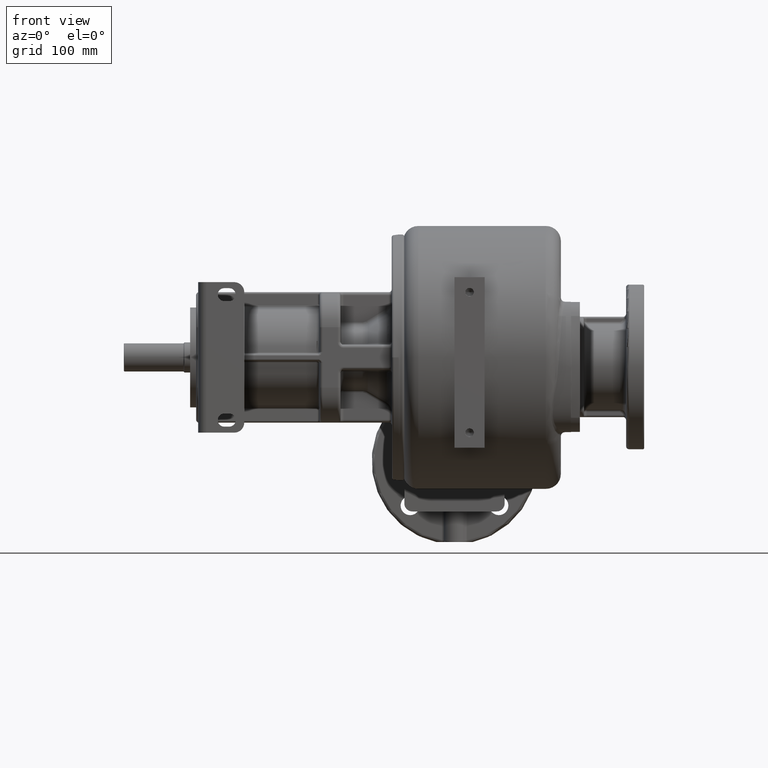
[diagram: clean part render]
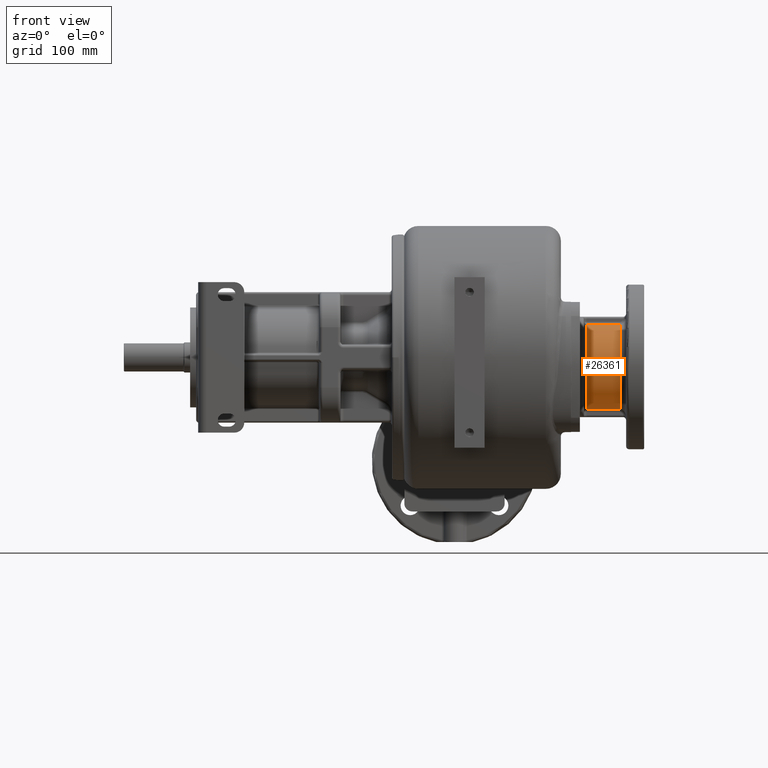
[diagram: same view with one face highlighted and labeled with its STEP entity id]
A machine part, front view. The second image highlights one B-rep face of the part: STEP entity #26361.
In plain terms, the highlighted cylindrical surface (partial cylindrical patch) has radius 42.5 mm, axis along (1, 0, 0).
Its self-contained STEP definition (entity closure, byte-faithful):
#8294=DIRECTION('',(-1.E0,6.999405768863E-9,5.261495707865E-8));
#8295=VECTOR('',#8294,3.299999999964E1);
#8296=CARTESIAN_POINT('',(1.499999999999E2,2.663956041646E2,-5.162886060892E1));
#8297=LINE('',#8296,#8295);
#8298=CARTESIAN_POINT('',(1.17E2,2.72E2,-9.5E0));
#8299=DIRECTION('',(1.E0,0.E0,0.E0));
#8300=DIRECTION('',(0.E0,-1.318681318681E-1,9.912672675911E-1));
#8301=AXIS2_PLACEMENT_3D('',#8298,#8299,#8300);
#8303=DIRECTION('',(1.E0,-6.999934584911E-9,5.261893461076E-8));
#8304=VECTOR('',#8303,3.299999999964E1);
#8305=CARTESIAN_POINT('',(1.170000000002E2,2.663956043956E2,3.262885887262E1));
#8306=LINE('',#8305,#8304);
#8307=CARTESIAN_POINT('',(1.5E2,2.72E2,-9.5E0));
#8308=DIRECTION('',(-1.E0,0.E0,0.E0));
#8309=DIRECTION('',(0.E0,-1.318681318681E-1,-9.912672675911E-1));
#8310=AXIS2_PLACEMENT_3D('',#8307,#8308,#8309);
#17087=CARTESIAN_POINT('',(1.17E2,2.663956043956E2,-5.162885887262E1));
#17089=VERTEX_POINT('',#17087);
#17091=CARTESIAN_POINT('',(1.499999999999E2,2.663956041646E2,
-5.162886060892E1));
#17092=VERTEX_POINT('',#17091);
#17099=CARTESIAN_POINT('',(1.17E2,2.663956043956E2,3.262885887262E1));
#17101=VERTEX_POINT('',#17099);
#17102=CARTESIAN_POINT('',(1.499999999999E2,2.663956041646E2,3.262886060905E1));
#17103=VERTEX_POINT('',#17102);
#26347=CARTESIAN_POINT('',(9.7E1,2.72E2,-9.5E0));
#26348=DIRECTION('',(1.E0,0.E0,0.E0));
#26349=DIRECTION('',(0.E0,0.E0,-1.E0));
#26350=AXIS2_PLACEMENT_3D('',#26347,#26348,#26349);
#26351=CYLINDRICAL_SURFACE('',#26350,4.25E1);
#26353=ORIENTED_EDGE('',*,*,#26352,.T.);
#26355=ORIENTED_EDGE('',*,*,#26354,.F.);
#26356=ORIENTED_EDGE('',*,*,#26338,.T.);
#26358=ORIENTED_EDGE('',*,*,#26357,.F.);
#26359=EDGE_LOOP('',(#26353,#26355,#26356,#26358));
#26360=FACE_OUTER_BOUND('',#26359,.F.);
#26361=ADVANCED_FACE('',(#26360),#26351,.T.);
#8302=CIRCLE('',#8301,4.25E1);
#8311=CIRCLE('',#8310,4.25E1);
#26338=EDGE_CURVE('',#17101,#17103,#8306,.T.);
#26352=EDGE_CURVE('',#17092,#17089,#8297,.T.);
#26354=EDGE_CURVE('',#17101,#17089,#8302,.T.);
#26357=EDGE_CURVE('',#17092,#17103,#8311,.T.);